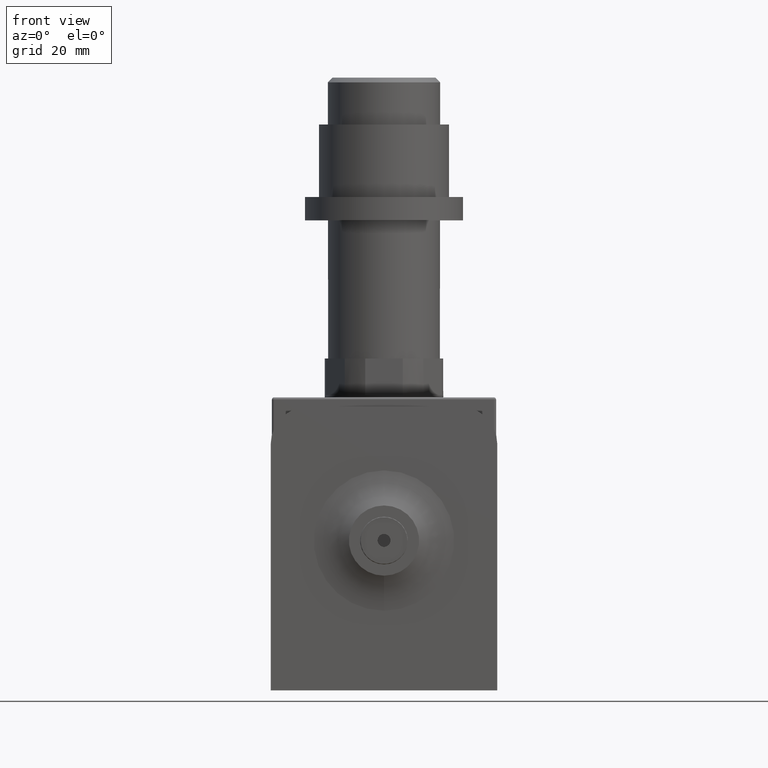
[diagram: clean part render]
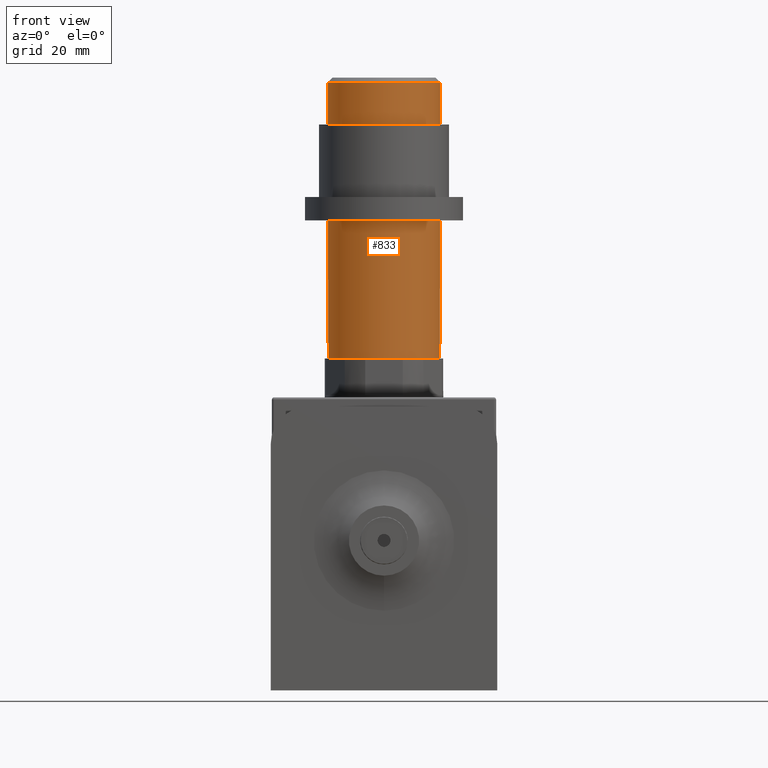
[diagram: same view with one face highlighted and labeled with its STEP entity id]
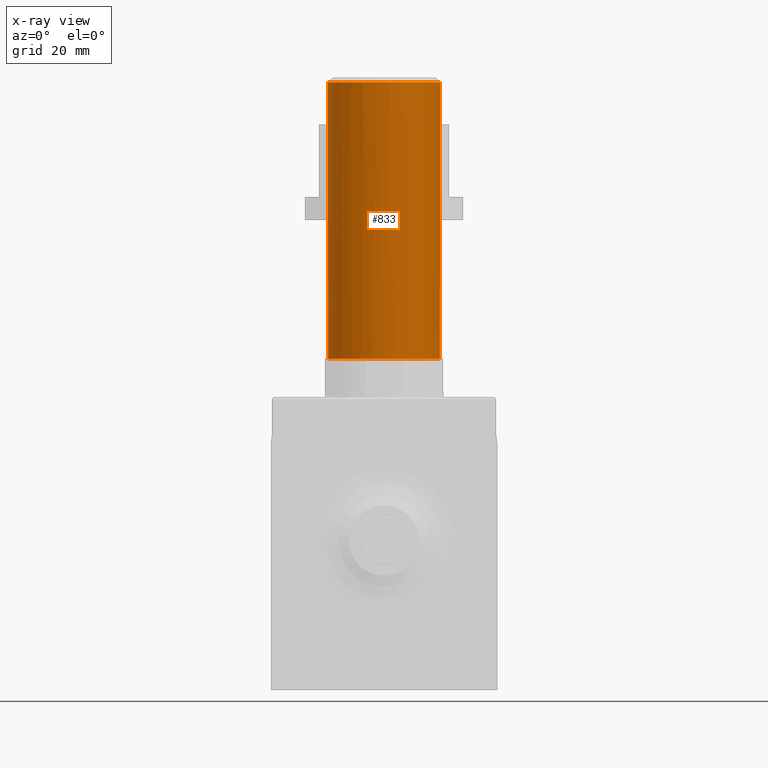
[diagram: x-ray of the same camera — body ghosted, the highlighted face saturated]
A machine part, front view. The second image highlights one B-rep face of the part: STEP entity #833.
The next image is the same camera in x-ray: the body ghosted, the highlighted face saturated — about 0% of this face is hidden behind the body in this view.
In plain terms, the highlighted cylindrical surface (bore or boss wall) has radius 12 mm, axis along (-0, -0, -1).
Its self-contained STEP definition (entity closure, byte-faithful):
#422 = EDGE_CURVE ( 'NONE', #5213, #7340, #11417, .T. ) ;
#582 = VERTEX_POINT ( 'NONE', #13428 ) ;
#763 = CARTESIAN_POINT ( 'NONE',  ( 0.000000000000000000, 0.000000000000000000, 29.90000000000000213 ) ) ;
#833 = ADVANCED_FACE ( 'NONE', ( #8944, #12362 ), #8567, .T. ) ;
#941 = EDGE_CURVE ( 'NONE', #6176, #1089, #15164, .T. ) ;
#1008 = DIRECTION ( 'NONE',  ( 1.000000000000000000, 0.000000000000000000, 0.000000000000000000 ) ) ;
#1089 = VERTEX_POINT ( 'NONE', #1652 ) ;
#1652 = CARTESIAN_POINT ( 'NONE',  ( 0.000000000000000000, -12.00000000000000000, 29.90000000000000213 ) ) ;
#1676 = ORIENTED_EDGE ( 'NONE', *, *, #8939, .F. ) ;
#1769 = ORIENTED_EDGE ( 'NONE', *, *, #4662, .F. ) ;
#1975 = DIRECTION ( 'NONE',  ( 1.000000000000000000, 0.000000000000000000, 0.000000000000000000 ) ) ;
#2145 = CIRCLE ( 'NONE', #5082, 12.00000000000000178 ) ;
#2245 = ORIENTED_EDGE ( 'NONE', *, *, #5650, .F. ) ;
#2275 = VERTEX_POINT ( 'NONE', #11460 ) ;
#2292 = ORIENTED_EDGE ( 'NONE', *, *, #941, .F. ) ;
#2297 = AXIS2_PLACEMENT_3D ( 'NONE', #9772, #9928, #3939 ) ;
#2536 = CARTESIAN_POINT ( 'NONE',  ( -10.39230484541326405, -5.999999999999998224, 29.90000000000000213 ) ) ;
#2817 = AXIS2_PLACEMENT_3D ( 'NONE', #5968, #7125, #9561 ) ;
#3104 = DIRECTION ( 'NONE',  ( -0.000000000000000000, -0.000000000000000000, -1.000000000000000000 ) ) ;
#3244 = CARTESIAN_POINT ( 'NONE',  ( 10.39230484541326582, -5.999999999999992895, 29.90000000000000213 ) ) ;
#3371 = DIRECTION ( 'NONE',  ( -0.000000000000000000, -0.000000000000000000, -1.000000000000000000 ) ) ;
#3719 = DIRECTION ( 'NONE',  ( 1.000000000000000000, 0.000000000000000000, 0.000000000000000000 ) ) ;
#3939 = DIRECTION ( 'NONE',  ( 1.000000000000000000, 1.776356839400250465E-15, 0.000000000000000000 ) ) ;
#4176 = DIRECTION ( 'NONE',  ( 0.000000000000000000, 0.000000000000000000, -1.000000000000000000 ) ) ;
#4426 = CIRCLE ( 'NONE', #11255, 12.00000000000000178 ) ;
#4432 = CARTESIAN_POINT ( 'NONE',  ( 10.39230484541325872, 6.000000000000002665, 29.90000000000000213 ) ) ;
#4631 = DIRECTION ( 'NONE',  ( -1.000000000000000000, 0.000000000000000000, 0.000000000000000000 ) ) ;
#4662 = EDGE_CURVE ( 'NONE', #1089, #5213, #10194, .T. ) ;
#5082 = AXIS2_PLACEMENT_3D ( 'NONE', #15217, #3104, #9203 ) ;
#5213 = VERTEX_POINT ( 'NONE', #2536 ) ;
#5650 = EDGE_CURVE ( 'NONE', #13179, #6176, #6637, .T. ) ;
#5968 = CARTESIAN_POINT ( 'NONE',  ( 0.000000000000000000, 0.000000000000000000, 29.90000000000000213 ) ) ;
#6176 = VERTEX_POINT ( 'NONE', #3244 ) ;
#6637 = CIRCLE ( 'NONE', #15225, 12.00000000000000178 ) ;
#6761 = AXIS2_PLACEMENT_3D ( 'NONE', #12309, #7422, #3719 ) ;
#7125 = DIRECTION ( 'NONE',  ( -0.000000000000000000, -0.000000000000000000, -1.000000000000000000 ) ) ;
#7340 = VERTEX_POINT ( 'NONE', #10834 ) ;
#7422 = DIRECTION ( 'NONE',  ( -0.000000000000000000, -0.000000000000000000, -1.000000000000000000 ) ) ;
#7999 = EDGE_CURVE ( 'NONE', #2275, #13179, #10624, .T. ) ;
#8307 = CARTESIAN_POINT ( 'NONE',  ( 0.000000000000000000, 0.000000000000000000, 29.90000000000000213 ) ) ;
#8567 = CYLINDRICAL_SURFACE ( 'NONE', #11883, 12.00000000000000178 ) ;
#8939 = EDGE_CURVE ( 'NONE', #7340, #2275, #2145, .T. ) ;
#8944 = FACE_OUTER_BOUND ( 'NONE', #11580, .T. ) ;
#9203 = DIRECTION ( 'NONE',  ( 1.000000000000000000, 0.000000000000000000, 0.000000000000000000 ) ) ;
#9299 = DIRECTION ( 'NONE',  ( -0.000000000000000000, -0.000000000000000000, -1.000000000000000000 ) ) ;
#9561 = DIRECTION ( 'NONE',  ( 1.000000000000000000, 0.000000000000000000, 0.000000000000000000 ) ) ;
#9772 = CARTESIAN_POINT ( 'NONE',  ( 0.000000000000000000, 0.000000000000000000, 29.90000000000000213 ) ) ;
#9928 = DIRECTION ( 'NONE',  ( -0.000000000000000000, -0.000000000000000000, -1.000000000000000000 ) ) ;
#10194 = CIRCLE ( 'NONE', #6761, 12.00000000000000178 ) ;
#10313 = ORIENTED_EDGE ( 'NONE', *, *, #422, .F. ) ;
#10388 = CARTESIAN_POINT ( 'NONE',  ( 0.000000000000000000, 0.000000000000000000, 89.90000000000000568 ) ) ;
#10624 = CIRCLE ( 'NONE', #11808, 12.00000000000000178 ) ;
#10834 = CARTESIAN_POINT ( 'NONE',  ( -10.39230484541326405, 5.999999999999996447, 29.90000000000000213 ) ) ;
#11255 = AXIS2_PLACEMENT_3D ( 'NONE', #11387, #4176, #12617 ) ;
#11300 = ORIENTED_EDGE ( 'NONE', *, *, #7999, .F. ) ;
#11387 = CARTESIAN_POINT ( 'NONE',  ( 0.000000000000000000, 0.000000000000000000, 88.90000000000003411 ) ) ;
#11417 = CIRCLE ( 'NONE', #2297, 12.00000000000000178 ) ;
#11460 = CARTESIAN_POINT ( 'NONE',  ( 0.000000000000000000, 12.00000000000000000, 29.90000000000000213 ) ) ;
#11580 = EDGE_LOOP ( 'NONE', ( #14454 ) ) ;
#11656 = EDGE_LOOP ( 'NONE', ( #2292, #2245, #11300, #1676, #10313, #1769 ) ) ;
#11808 = AXIS2_PLACEMENT_3D ( 'NONE', #763, #15087, #1975 ) ;
#11883 = AXIS2_PLACEMENT_3D ( 'NONE', #10388, #9299, #4631 ) ;
#12309 = CARTESIAN_POINT ( 'NONE',  ( 0.000000000000000000, 0.000000000000000000, 29.90000000000000213 ) ) ;
#12362 = FACE_OUTER_BOUND ( 'NONE', #11656, .T. ) ;
#12390 = EDGE_CURVE ( 'NONE', #582, #582, #4426, .T. ) ;
#12617 = DIRECTION ( 'NONE',  ( 1.000000000000000000, 0.000000000000000000, 0.000000000000000000 ) ) ;
#13179 = VERTEX_POINT ( 'NONE', #4432 ) ;
#13428 = CARTESIAN_POINT ( 'NONE',  ( 12.00000000000000178, 0.000000000000000000, 88.90000000000003411 ) ) ;
#14454 = ORIENTED_EDGE ( 'NONE', *, *, #12390, .T. ) ;
#15087 = DIRECTION ( 'NONE',  ( -0.000000000000000000, -0.000000000000000000, -1.000000000000000000 ) ) ;
#15164 = CIRCLE ( 'NONE', #2817, 12.00000000000000178 ) ;
#15217 = CARTESIAN_POINT ( 'NONE',  ( 0.000000000000000000, 0.000000000000000000, 29.90000000000000213 ) ) ;
#15225 = AXIS2_PLACEMENT_3D ( 'NONE', #8307, #3371, #1008 ) ;